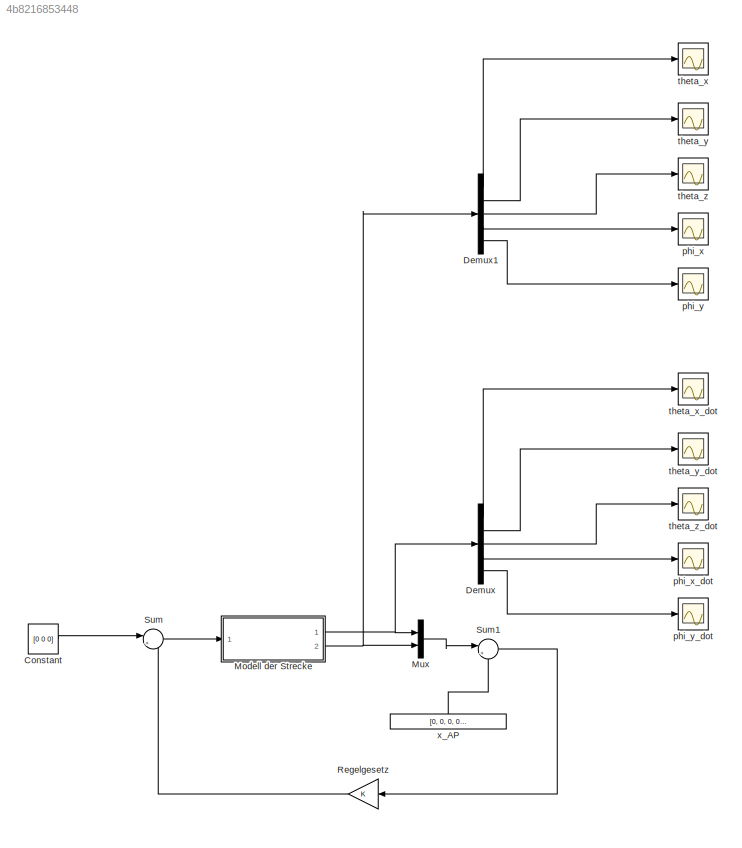
MODEL slx_4b8216853448
KIND model
CONFIG AbsTol = auto
CONFIG FixedStep = auto
CONFIG MaxStep = auto
CONFIG MinStep = auto
CONFIG RelTol = 1e-3
CONFIG SampleTimeConstraint = Unconstrained
CONFIG Solver = VariableStepAuto
CONFIG SolverMode = Auto
CONFIG SolverName = VariableStepAuto
CONFIG StartTime = 0.0
CONFIG StopTime = 10.0
BLOCK [Constant] Constant
  Value = [0 0 0]
BLOCK [Demux] Demux
  DisplayOption = bar
  Outputs = 5
  Ports = [1, 5]
BLOCK [Demux] Demux1
  DisplayOption = bar
  Outputs = 5
  Ports = [1, 5]
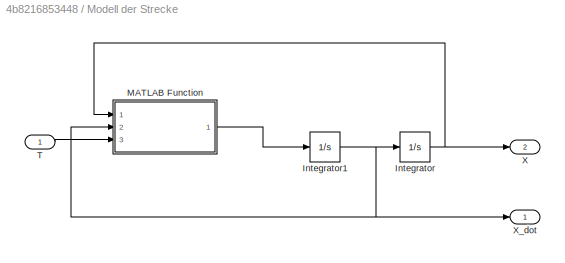
BLOCK [SubSystem] Modell der Strecke
  Ports = [1, 2]
  RequestExecContextInheritance = off
  Variant = off
BLOCK [Integrator] Modell der Strecke/Integrator
  InitialCondition = [0 pi/32 0 0 0]
  Ports = [1, 1]
BLOCK [Integrator] Modell der Strecke/Integrator1
  InitialCondition = [0 0 0 0 0]
  Ports = [1, 1]
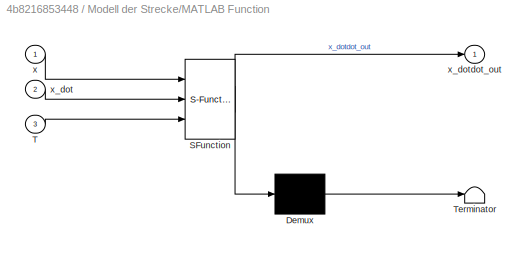
BLOCK [SubSystem] Modell der Strecke/MATLAB Function
  ErrorFcn = Stateflow.Translate.translate
  PermitHierarchicalResolution = ExplicitOnly
  Ports = [3, 1]
  RequestExecContextInheritance = off
  SFBlockType = MATLAB Function
  TreatAsAtomicUnit = on
  Variant = off
BLOCK [Demux] Modell der Strecke/MATLAB Function/ Demux 
  Outputs = 1
  Ports = [1, 1]
BLOCK [S-Function] Modell der Strecke/MATLAB Function/ SFunction 
  EnableBusSupport = on
  FunctionName = sf_sfun
  PortCounts = [3 2]
  Ports = [3, 2]
  SFunctionDeploymentMode = off
  Tag = Stateflow S-Function RealModel 2
BLOCK [Terminator] Modell der Strecke/MATLAB Function/ Terminator 
BLOCK [Inport] Modell der Strecke/MATLAB Function/T
  IconDisplay = Port number
  Port = 3
BLOCK [Inport] Modell der Strecke/MATLAB Function/x
  IconDisplay = Port number
BLOCK [Inport] Modell der Strecke/MATLAB Function/x_dot
  IconDisplay = Port number
  Port = 2
BLOCK [Outport] Modell der Strecke/MATLAB Function/x_dotdot_out
  IconDisplay = Port number
BLOCK [Inport] Modell der Strecke/T
  IconDisplay = Port number
BLOCK [Outport] Modell der Strecke/X
  IconDisplay = Port number
  Port = 2
BLOCK [Outport] Modell der Strecke/X_dot
  IconDisplay = Port number
BLOCK [Mux] Mux
  DisplayOption = bar
  Inputs = 2
  Ports = [2, 1]
BLOCK [Gain] Regelgesetz
  Gain = K
  Multiplication = Matrix(K*u)
  OutDataTypeStr = Inherit: Inherit via internal rule
  ParamDataTypeStr = Inherit: Inherit via internal rule
  SaturateOnIntegerOverflow = off
BLOCK [Sum] Sum
  IconShape = round
  InputSameDT = off
  Inputs = |++
  OutDataTypeStr = Inherit: Inherit via internal rule
  Ports = [2, 1]
  SaturateOnIntegerOverflow = off
BLOCK [Sum] Sum1
  IconShape = round
  InputSameDT = off
  Inputs = |+-
  OutDataTypeStr = Inherit: Inherit via internal rule
  Ports = [2, 1]
  SaturateOnIntegerOverflow = off
BLOCK [Scope] phi_x
  Ports = [1]
  ScopeSpecificationString = C++SS(StrPVP('SaveName','ScopeData'),StrPVP('SaveName','ScopeData3'),StrPVP('SaveName','ScopeData5'),StrPVP('LimitDataPoints','on'),StrPVP('DataFormat','Array'),StrPVP('Decimation','1'),StrPVP('BlockParamSampleInput','off'))
BLOCK [Scope] phi_x_dot
  Ports = [1]
  ScopeSpecificationString = C++SS(StrPVP('SaveName','ScopeData'),StrPVP('SaveName','ScopeData3'),StrPVP('LimitDataPoints','on'),StrPVP('DataFormat','Array'),StrPVP('Decimation','1'),StrPVP('BlockParamSampleInput','off'))
BLOCK [Scope] phi_y
  Ports = [1]
  ScopeSpecificationString = C++SS(StrPVP('SaveName','ScopeData'),StrPVP('SaveName','ScopeData4'),StrPVP('SaveName','ScopeData6'),StrPVP('LimitDataPoints','on'),StrPVP('DataFormat','Array'),StrPVP('Decimation','1'),StrPVP('BlockParamSampleInput','off'))
BLOCK [Scope] phi_y_dot
  Ports = [1]
  ScopeSpecificationString = C++SS(StrPVP('SaveName','ScopeData'),StrPVP('SaveName','ScopeData4'),StrPVP('LimitDataPoints','on'),StrPVP('DataFormat','Array'),StrPVP('Decimation','1'),StrPVP('BlockParamSampleInput','off'))
BLOCK [Scope] theta_x
  Ports = [1]
  ScopeSpecificationString = Simulink.scopes.TimeScopeBlockCfg('CurrentConfiguration', extmgr.ConfigurationSet(extmgr.Configuration('Core','General UI',true),extmgr.Configuration('Core','Source UI',true),extmgr.Configuration('Sources','WiredSimulink',true,'DataLoggingVariableName','ScopeData7'),extmgr.Configuration('Visuals','Time Domain',true),extmgr.Configuration('Tools','Plot Navigation',true),extmgr.Configuration('Tools',...<+86ch>
BLOCK [Scope] theta_x_dot
  Ports = [1]
  ScopeSpecificationString = C++SS(StrPVP('SaveName','ScopeData'),StrPVP('LimitDataPoints','on'),StrPVP('DataFormat','Array'),StrPVP('Decimation','1'),StrPVP('BlockParamSampleInput','off'))
BLOCK [Scope] theta_y
  Ports = [1]
  ScopeSpecificationString = C++SS(StrPVP('SaveName','ScopeData'),StrPVP('SaveName','ScopeData1'),StrPVP('SaveName','ScopeData8'),StrPVP('LimitDataPoints','on'),StrPVP('DataFormat','Array'),StrPVP('Decimation','1'),StrPVP('BlockParamSampleInput','off'))
BLOCK [Scope] theta_y_dot
  Ports = [1]
  ScopeSpecificationString = C++SS(StrPVP('SaveName','ScopeData'),StrPVP('SaveName','ScopeData1'),StrPVP('LimitDataPoints','on'),StrPVP('DataFormat','Array'),StrPVP('Decimation','1'),StrPVP('BlockParamSampleInput','off'))
BLOCK [Scope] theta_z
  Ports = [1]
  ScopeSpecificationString = C++SS(StrPVP('SaveName','ScopeData'),StrPVP('SaveName','ScopeData2'),StrPVP('SaveName','ScopeData9'),StrPVP('LimitDataPoints','on'),StrPVP('DataFormat','Array'),StrPVP('Decimation','1'),StrPVP('BlockParamSampleInput','off'))
BLOCK [Scope] theta_z_dot
  Ports = [1]
  ScopeSpecificationString = C++SS(StrPVP('SaveName','ScopeData'),StrPVP('SaveName','ScopeData2'),StrPVP('LimitDataPoints','on'),StrPVP('DataFormat','Array'),StrPVP('Decimation','1'),StrPVP('BlockParamSampleInput','off'))
BLOCK [Constant] x_AP
  Value = [0, 0, 0, 0, 0, 0, 0, 0, 0, 0]
  VectorParams1D = off
LINE Constant:1 -> Sum:1
LINE Demux1:1 -> theta_x:1
LINE Demux1:2 -> theta_y:1
LINE Demux1:3 -> theta_z:1
LINE Demux1:4 -> phi_x:1
LINE Demux1:5 -> phi_y:1
LINE Demux:1 -> theta_x_dot:1
LINE Demux:2 -> theta_y_dot:1
LINE Demux:3 -> theta_z_dot:1
LINE Demux:4 -> phi_x_dot:1
LINE Demux:5 -> phi_y_dot:1
NET Modell der Strecke/Integrator1:1 -> Modell der Strecke/Integrator:1, Modell der Strecke/MATLAB Function:2, Modell der Strecke/X_dot:1
NET Modell der Strecke/Integrator:1 -> Modell der Strecke/MATLAB Function:1, Modell der Strecke/X:1
LINE Modell der Strecke/MATLAB Function:1 -> Modell der Strecke/Integrator1:1
LINE Modell der Strecke/T:1 -> Modell der Strecke/MATLAB Function:3
NET Modell der Strecke:1 -> Demux:1, Mux:1
NET Modell der Strecke:2 -> Demux1:1, Mux:2
LINE Mux:1 -> Sum1:1
LINE Regelgesetz:1 -> Sum:2
LINE Sum1:1 -> Regelgesetz:1
LINE Sum:1 -> Modell der Strecke:1
LINE x_AP:1 -> Sum1:2
note: NET lines group one-source signal fan-out (src -> all destinations, sorted); 1:1 wires keep LINE
CHART Modell der Strecke/MATLAB Function states=1 transitions=1
  STATE_LABEL 'eML_blk_kernel()'
  STATE_LABEL 'SCRIPT:\nfunction x_dotdot_out = fcn(x, x_dot, T)\n\n%Zuweisung Koordinaten und Ableitungen\nx1 = x(1); %theta_x\nx2 = x_dot(1); %theta_y\nx3 = x(2);\nx4 = x_dot(2);\nx5 = x(3);\nx6 = x_dot(3);\nx7 = x(4);\nx8 = x_dot(4);\nx9 = x(5);\nx10 = x_dot(5);\n\nu1 = T(1);\nu2 = T(2);\nu3 = T(3);\n\n\nx_dotdot = [x2, (0. + ((0.12348*cos(x1) - 0.9716*cos(x3))*(-0.4858*sin(2.*x1)*(0.12347999999999999*sin(x1) + 0.4858*cos(x3)*si...<+3608ch>'
